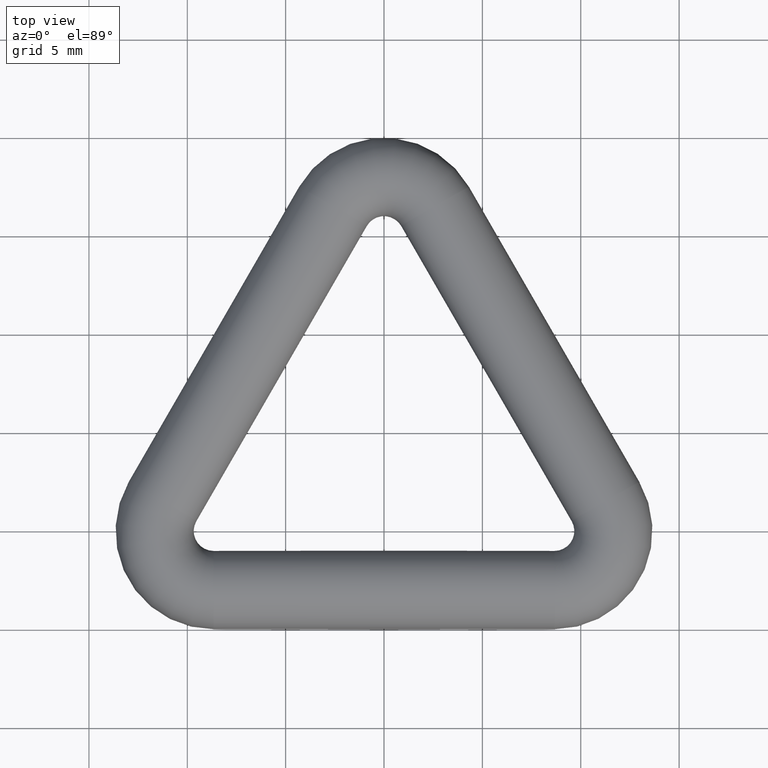
[diagram: clean part render]
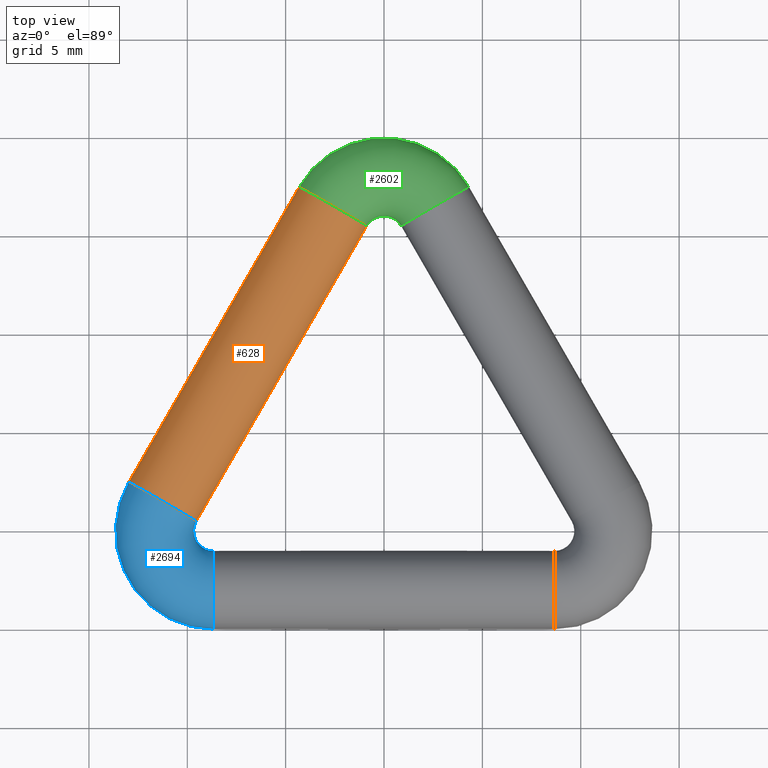
[diagram: same view with three faces highlighted in distinct colors, each labeled with its STEP entity id]
A machine part, top view with three faces highlighted in distinct colors.
Their STEP definitions:

[orange] entity #628 — the highlighted cylindrical surface (bore or boss wall) has radius 2 mm, axis along (-0.5, -0.866, 0).
#195 = AXIS2_PLACEMENT_3D ( 'NONE', #9250, #459, #9102 ) ;
#459 = DIRECTION ( 'NONE',  ( -0.4999999999999973400, -0.8660254037844403700, 0.0000000000000000000 ) ) ;
#463 = DIRECTION ( 'NONE',  ( -0.4999999999999973400, -0.8660254037844403700, 0.0000000000000000000 ) ) ;
#628 = ADVANCED_FACE ( 'NONE', ( #2270, #639 ), #3466, .T. ) ;
#639 = FACE_OUTER_BOUND ( 'NONE', #10412, .T. ) ;
#801 = EDGE_LOOP ( 'NONE', ( #908 ) ) ;
#908 = ORIENTED_EDGE ( 'NONE', *, *, #10657, .T. ) ;
#1462 = AXIS2_PLACEMENT_3D ( 'NONE', #8300, #2218, #6619 ) ;
#2072 = AXIS2_PLACEMENT_3D ( 'NONE', #9140, #463, #6476 ) ;
#2218 = DIRECTION ( 'NONE',  ( -0.4999999999999977800, -0.8660254037844399300, 0.0000000000000000000 ) ) ;
#2270 = FACE_OUTER_BOUND ( 'NONE', #801, .T. ) ;
#3455 = VERTEX_POINT ( 'NONE', #9521 ) ;
#3466 = CYLINDRICAL_SURFACE ( 'NONE', #1462, 2.000000000000000900 ) ;
#5242 = VERTEX_POINT ( 'NONE', #8721 ) ;
#6232 = CIRCLE ( 'NONE', #2072, 1.999999999999999600 ) ;
#6476 = DIRECTION ( 'NONE',  ( 0.0000000000000000000, 0.0000000000000000000, -1.000000000000000000 ) ) ;
#6619 = DIRECTION ( 'NONE',  ( 0.8660254037844397100, -0.4999999999999985000, 0.0000000000000000000 ) ) ;
#8300 = CARTESIAN_POINT ( 'NONE',  ( -2.598076211353318200, 21.49999999999999600, 0.0000000000000000000 ) ) ;
#8677 = CIRCLE ( 'NONE', #195, 1.999999999999999600 ) ;
#8721 = CARTESIAN_POINT ( 'NONE',  ( -11.25833024919765200, 6.499999999999997300, -1.999999999999999600 ) ) ;
#9102 = DIRECTION ( 'NONE',  ( 0.0000000000000000000, 0.0000000000000000000, -1.000000000000000000 ) ) ;
#9140 = CARTESIAN_POINT ( 'NONE',  ( -11.25833024919765200, 6.499999999999997300, 0.0000000000000000000 ) ) ;
#9250 = CARTESIAN_POINT ( 'NONE',  ( -2.598076211353318200, 21.49999999999999600, 0.0000000000000000000 ) ) ;
#9289 = EDGE_CURVE ( 'NONE', #5242, #5242, #6232, .T. ) ;
#9521 = CARTESIAN_POINT ( 'NONE',  ( -2.598076211353318200, 21.49999999999999600, -1.999999999999999600 ) ) ;
#10412 = EDGE_LOOP ( 'NONE', ( #10982 ) ) ;
#10657 = EDGE_CURVE ( 'NONE', #3455, #3455, #8677, .T. ) ;
#10982 = ORIENTED_EDGE ( 'NONE', *, *, #9289, .F. ) ;

[blue] entity #2694 — the highlighted toroidal blend (fillet) surface has major radius 3 mm and minor (blend) radius 2 mm.
#151 = CARTESIAN_POINT ( 'NONE',  ( -8.660254037844334000, 5.000000000000001800, 0.0000000000000000000 ) ) ;
#222 = ORIENTED_EDGE ( 'NONE', *, *, #9289, .T. ) ;
#463 = DIRECTION ( 'NONE',  ( -0.4999999999999973400, -0.8660254037844403700, 0.0000000000000000000 ) ) ;
#784 = DIRECTION ( 'NONE',  ( 0.0000000000000000000, 0.0000000000000000000, -1.000000000000000000 ) ) ;
#1316 = CIRCLE ( 'NONE', #9390, 1.999999999999999600 ) ;
#1338 = EDGE_LOOP ( 'NONE', ( #4433 ) ) ;
#2072 = AXIS2_PLACEMENT_3D ( 'NONE', #9140, #463, #6476 ) ;
#2471 = EDGE_LOOP ( 'NONE', ( #222 ) ) ;
#2694 = ADVANCED_FACE ( 'NONE', ( #3881, #3053 ), #8777, .T. ) ;
#3053 = FACE_OUTER_BOUND ( 'NONE', #1338, .T. ) ;
#3881 = FACE_OUTER_BOUND ( 'NONE', #2471, .T. ) ;
#4433 = ORIENTED_EDGE ( 'NONE', *, *, #10100, .F. ) ;
#5242 = VERTEX_POINT ( 'NONE', #8721 ) ;
#5254 = AXIS2_PLACEMENT_3D ( 'NONE', #151, #8870, #6156 ) ;
#5801 = VERTEX_POINT ( 'NONE', #9553 ) ;
#5924 = DIRECTION ( 'NONE',  ( 1.000000000000000000, 2.775557561562891800E-016, 0.0000000000000000000 ) ) ;
#6156 = DIRECTION ( 'NONE',  ( 1.000000000000000000, 0.0000000000000000000, 0.0000000000000000000 ) ) ;
#6232 = CIRCLE ( 'NONE', #2072, 1.999999999999999600 ) ;
#6476 = DIRECTION ( 'NONE',  ( 0.0000000000000000000, 0.0000000000000000000, -1.000000000000000000 ) ) ;
#8721 = CARTESIAN_POINT ( 'NONE',  ( -11.25833024919765200, 6.499999999999997300, -1.999999999999999600 ) ) ;
#8777 = TOROIDAL_SURFACE ( 'NONE', #5254, 2.999999999999999600, 2.000000000000000000 ) ;
#8870 = DIRECTION ( 'NONE',  ( 0.0000000000000000000, 0.0000000000000000000, 1.000000000000000000 ) ) ;
#9140 = CARTESIAN_POINT ( 'NONE',  ( -11.25833024919765200, 6.499999999999997300, 0.0000000000000000000 ) ) ;
#9289 = EDGE_CURVE ( 'NONE', #5242, #5242, #6232, .T. ) ;
#9390 = AXIS2_PLACEMENT_3D ( 'NONE', #10234, #5924, #784 ) ;
#9553 = CARTESIAN_POINT ( 'NONE',  ( -8.660254037844337600, 2.000000000000003600, -1.999999999999999600 ) ) ;
#10100 = EDGE_CURVE ( 'NONE', #5801, #5801, #1316, .T. ) ;
#10234 = CARTESIAN_POINT ( 'NONE',  ( -8.660254037844337600, 2.000000000000003600, 0.0000000000000000000 ) ) ;

[green] entity #2602 — the highlighted toroidal blend (fillet) surface has major radius 3 mm and minor (blend) radius 2 mm.
#195 = AXIS2_PLACEMENT_3D ( 'NONE', #9250, #459, #9102 ) ;
#333 = EDGE_CURVE ( 'NONE', #892, #892, #7743, .T. ) ;
#459 = DIRECTION ( 'NONE',  ( -0.4999999999999973400, -0.8660254037844403700, 0.0000000000000000000 ) ) ;
#616 = FACE_OUTER_BOUND ( 'NONE', #7138, .T. ) ;
#892 = VERTEX_POINT ( 'NONE', #11177 ) ;
#1017 = FACE_OUTER_BOUND ( 'NONE', #6935, .T. ) ;
#2040 = AXIS2_PLACEMENT_3D ( 'NONE', #9312, #9347, #11106 ) ;
#2482 = ORIENTED_EDGE ( 'NONE', *, *, #10657, .F. ) ;
#2505 = DIRECTION ( 'NONE',  ( 1.000000000000000000, 0.0000000000000000000, 0.0000000000000000000 ) ) ;
#2602 = ADVANCED_FACE ( 'NONE', ( #1017, #616 ), #5364, .T. ) ;
#3455 = VERTEX_POINT ( 'NONE', #9521 ) ;
#4307 = DIRECTION ( 'NONE',  ( 0.0000000000000000000, 0.0000000000000000000, 1.000000000000000000 ) ) ;
#5364 = TOROIDAL_SURFACE ( 'NONE', #10159, 3.000000000000000400, 2.000000000000000000 ) ;
#6935 = EDGE_LOOP ( 'NONE', ( #7577 ) ) ;
#7138 = EDGE_LOOP ( 'NONE', ( #2482 ) ) ;
#7577 = ORIENTED_EDGE ( 'NONE', *, *, #333, .T. ) ;
#7743 = CIRCLE ( 'NONE', #2040, 1.999999999999999600 ) ;
#7753 = CARTESIAN_POINT ( 'NONE',  ( 0.0000000000000000000, 20.00000000000000000, 0.0000000000000000000 ) ) ;
#8677 = CIRCLE ( 'NONE', #195, 1.999999999999999600 ) ;
#9102 = DIRECTION ( 'NONE',  ( 0.0000000000000000000, 0.0000000000000000000, -1.000000000000000000 ) ) ;
#9250 = CARTESIAN_POINT ( 'NONE',  ( -2.598076211353318200, 21.49999999999999600, 0.0000000000000000000 ) ) ;
#9312 = CARTESIAN_POINT ( 'NONE',  ( 2.598076211353319600, 21.49999999999999600, 0.0000000000000000000 ) ) ;
#9347 = DIRECTION ( 'NONE',  ( -0.4999999999999980000, 0.8660254037844400400, 0.0000000000000000000 ) ) ;
#9521 = CARTESIAN_POINT ( 'NONE',  ( -2.598076211353318200, 21.49999999999999600, -1.999999999999999600 ) ) ;
#10159 = AXIS2_PLACEMENT_3D ( 'NONE', #7753, #4307, #2505 ) ;
#10657 = EDGE_CURVE ( 'NONE', #3455, #3455, #8677, .T. ) ;
#11106 = DIRECTION ( 'NONE',  ( 0.0000000000000000000, 0.0000000000000000000, -1.000000000000000000 ) ) ;
#11177 = CARTESIAN_POINT ( 'NONE',  ( 2.598076211353319600, 21.49999999999999600, -1.999999999999999600 ) ) ;